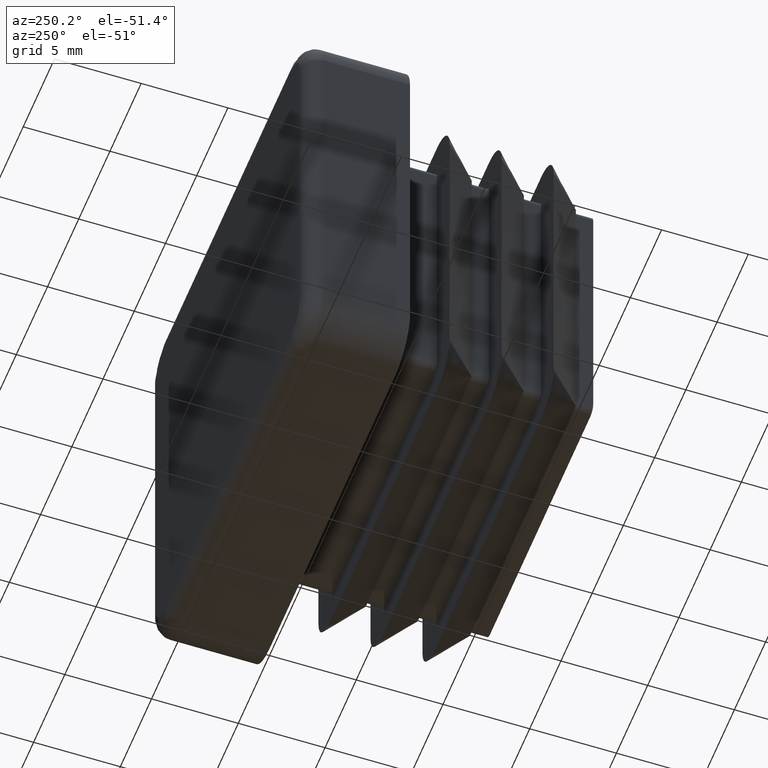
[diagram: clean part render]
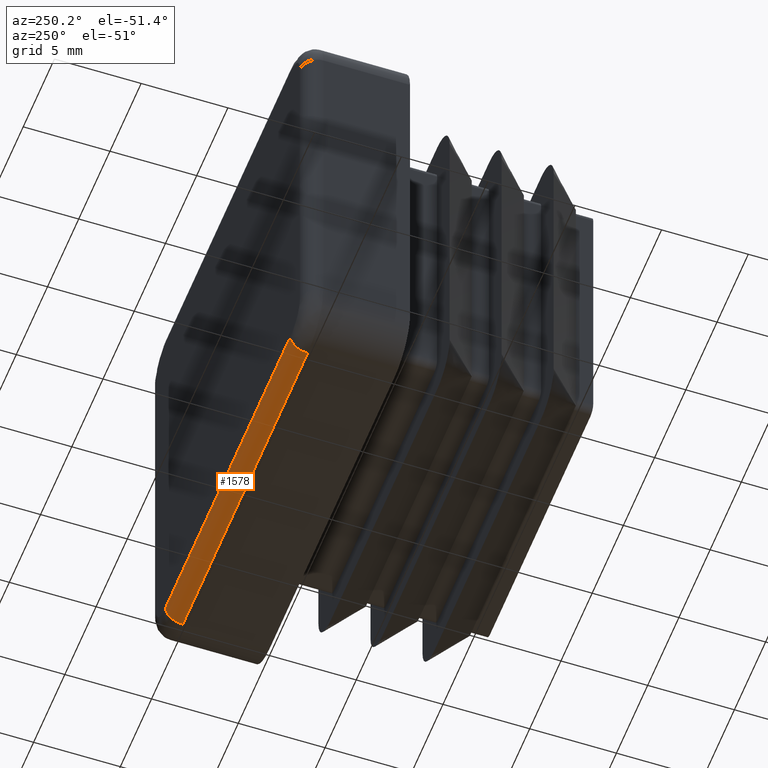
[diagram: same view with one face highlighted and labeled with its STEP entity id]
A machine part, auxiliary view. The second image highlights one B-rep face of the part: STEP entity #1578.
In plain terms, the highlighted cylindrical surface (edge-blend (fillet) strip) has radius 1 mm, axis along (1, 0, 0).
Its self-contained STEP definition (entity closure, byte-faithful):
#1141=CARTESIAN_POINT('',(9.999999999999989,5.0,-12.500000000000004));
#1142=VERTEX_POINT('',#1141);
#1174=CARTESIAN_POINT('',(-9.999999999999979,5.0,-12.500000000000004));
#1175=VERTEX_POINT('',#1174);
#1184=CARTESIAN_POINT('',(-9.999999999999979,5.0,-12.500000000000004));
#1185=DIRECTION('',(1.0,0.0,0.0));
#1186=VECTOR('',#1185,19.999999999999964);
#1187=LINE('',#1184,#1186);
#1188=EDGE_CURVE('',#1175,#1142,#1187,.T.);
#1260=CARTESIAN_POINT('',(9.999999999999989,6.0,-11.500000000000004));
#1261=VERTEX_POINT('',#1260);
#1262=CARTESIAN_POINT('',(-9.999999999999984,6.0,-11.500000000000007));
#1263=VERTEX_POINT('',#1262);
#1264=CARTESIAN_POINT('',(9.999999999999989,6.0,-11.500000000000007));
#1265=DIRECTION('',(-1.0,0.0,0.0));
#1266=VECTOR('',#1265,19.999999999999968);
#1267=LINE('',#1264,#1266);
#1268=EDGE_CURVE('',#1261,#1263,#1267,.T.);
#1514=CARTESIAN_POINT('',(9.999999999999989,5.0,-11.500000000000004));
#1515=DIRECTION('',(-1.0,0.0,0.0));
#1516=DIRECTION('',(0.0,0.0,1.0));
#1517=AXIS2_PLACEMENT_3D('',#1514,#1515,#1516);
#1518=CIRCLE('',#1517,0.999999999999999);
#1519=EDGE_CURVE('',#1261,#1142,#1518,.T.);
#1561=CARTESIAN_POINT('',(-10.000000009999983,5.0,-11.500000000000005));
#1562=DIRECTION('',(1.0,0.0,0.0));
#1563=DIRECTION('',(0.0,-0.707106781186548,0.707106781186547));
#1564=AXIS2_PLACEMENT_3D('',#1561,#1562,#1563);
#1565=CYLINDRICAL_SURFACE('',#1564,1.000000000000001);
#1566=ORIENTED_EDGE('',*,*,#1519,.T.);
#1567=ORIENTED_EDGE('',*,*,#1188,.F.);
#1568=CARTESIAN_POINT('',(-9.999999999999984,5.0,-11.500000000000007));
#1569=DIRECTION('',(-1.0,0.0,0.0));
#1570=DIRECTION('',(0.0,0.0,1.0));
#1571=AXIS2_PLACEMENT_3D('',#1568,#1569,#1570);
#1572=CIRCLE('',#1571,1.000000000000001);
#1573=EDGE_CURVE('',#1263,#1175,#1572,.T.);
#1574=ORIENTED_EDGE('',*,*,#1573,.F.);
#1575=ORIENTED_EDGE('',*,*,#1268,.F.);
#1576=EDGE_LOOP('',(#1566,#1567,#1574,#1575));
#1577=FACE_OUTER_BOUND('',#1576,.T.);
#1578=ADVANCED_FACE('',(#1577),#1565,.T.);